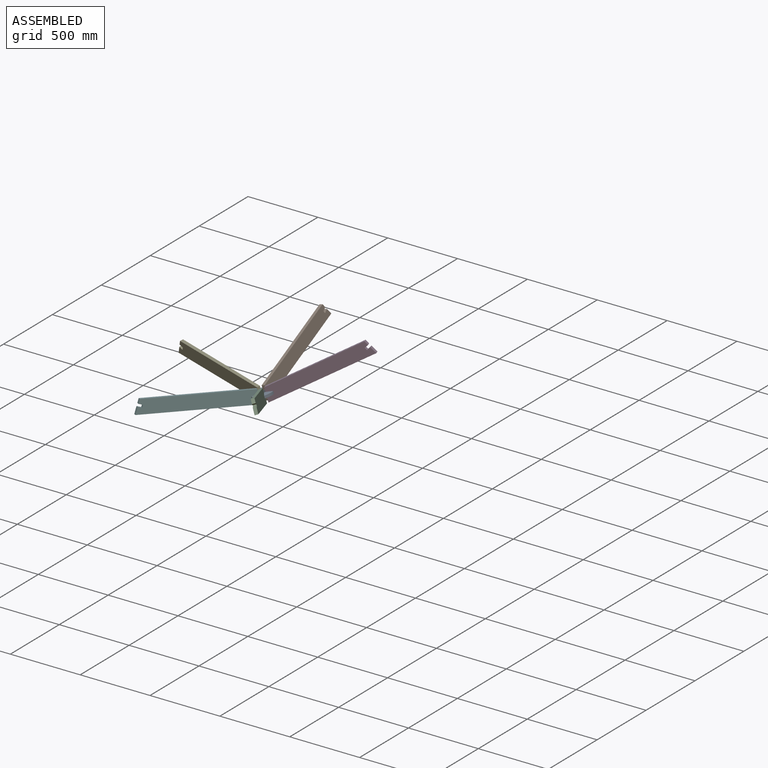
[diagram: assembled view]
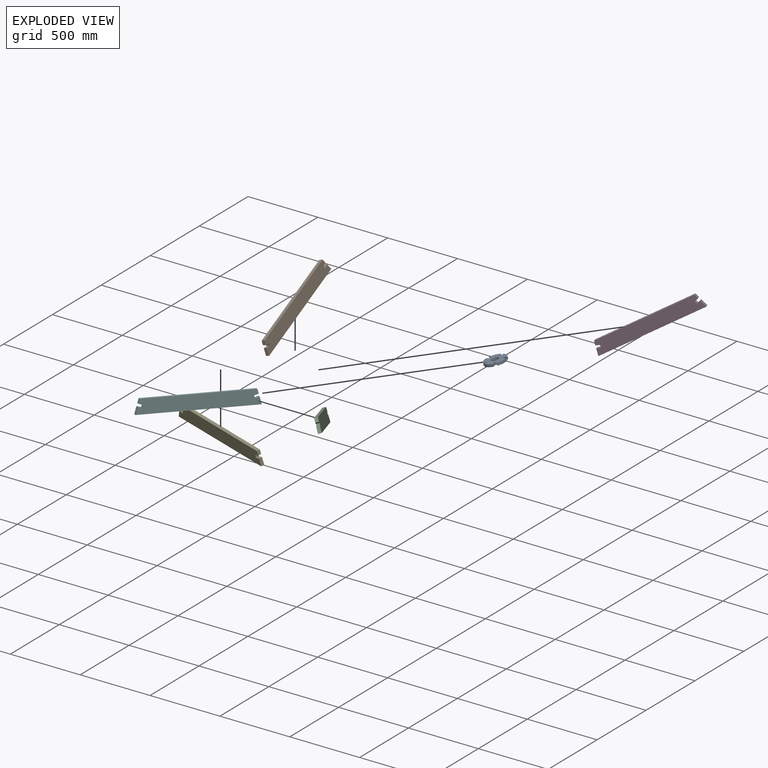
[diagram: exploded view]
GUIDED TOUR — MATED ASSEMBLY (Onshape document 0f69576821f2b884423cecf3, AutoMate assembly 0f69576821f2b884423cecf3_7e9c7edb3b1099160e2b73f4_de82159acf13c42b753e79b9_default)

This assembly has 6 components, labeled P0..P5 below (a component is one placed occurrence of a part; the same part can appear more than once), held together by 5 mates. A mate is a constraint between two components; its type names the relative motion it leaves free:
  FASTENED — locks the two components together rigidly (no relative motion).
Axis/direction vectors are unit vectors and 'through' points are millimeter coordinates, both in the assembly's world frame.

MATES
  1. FASTENED "Fastened 1": P3 <-> P0, direction (0.915, 0.297, 0.274) through (-190.22, -61.81, -5.05) mm
  2. FASTENED "Fastened 4": P5 <-> P0, direction (-0.558, -0.799, -0.222) through (-271.24, -122.12, -32.31) mm
  3. FASTENED "Fastened 3": P4 <-> P0, direction (-0.922, 0.319, -0.222) through (-291.22, -60.63, -32.31) mm
  4. FASTENED "Fastened 5": P2 <-> P0, direction (0.577, -0.813, 0.085) through (-208.82, -122.85, -15.46) mm
  5. FASTENED "Fastened 2": P0 <-> P1, direction (-0.011, 0.996, 0.085) through (-241.15, -23.35, -15.46) mm

ASSEMBLY ORDER
  1. P5 — the base component [order verified]
  2. P0 [order verified]
  3. P1 [order verified]
  4. P2 [order verified]
  5. P3 [order verified]
  6. P4 [order verified]
Order-tag legend:
  [order verified] — this step's position reverses a verified removal order: the component was checked to insert without passing through the ones already placed.

Of the 6 components, 6 carry the full construction recipe — the FeatureScript program that regenerates the part's solid from scratch; the rest are supplied as boundary geometry only.
Each toured component is shown spotlighted twice — in the assembled view, then in the exploded view, where a leader line traces a displaced component back to its assembled socket (saturated green if recipe-attached, orange if geometry-only; every other component desaturated gray) — followed by its recipe or geometry summary and the mates that hold it.
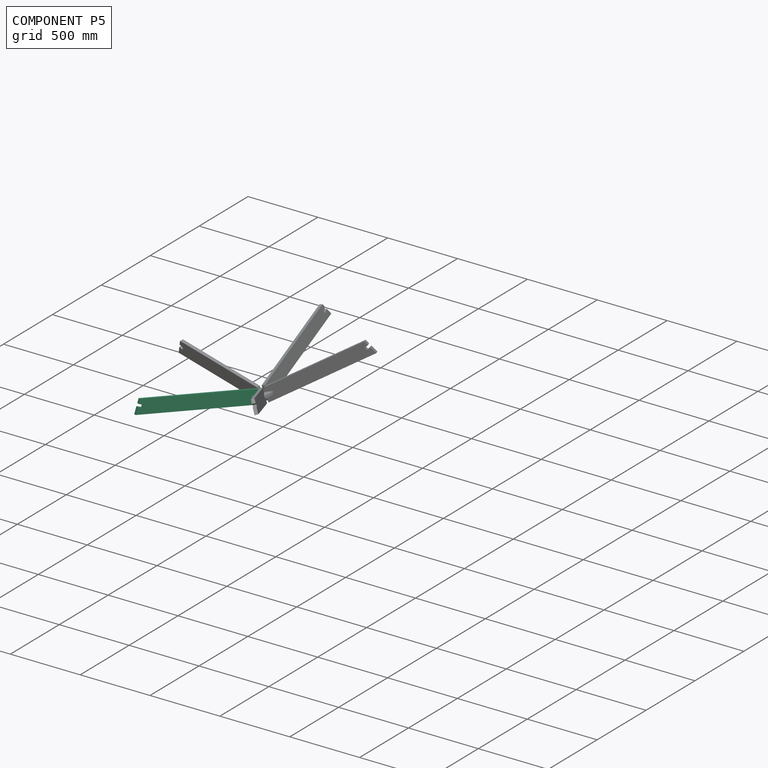
[diagram: component P5 — assembled]
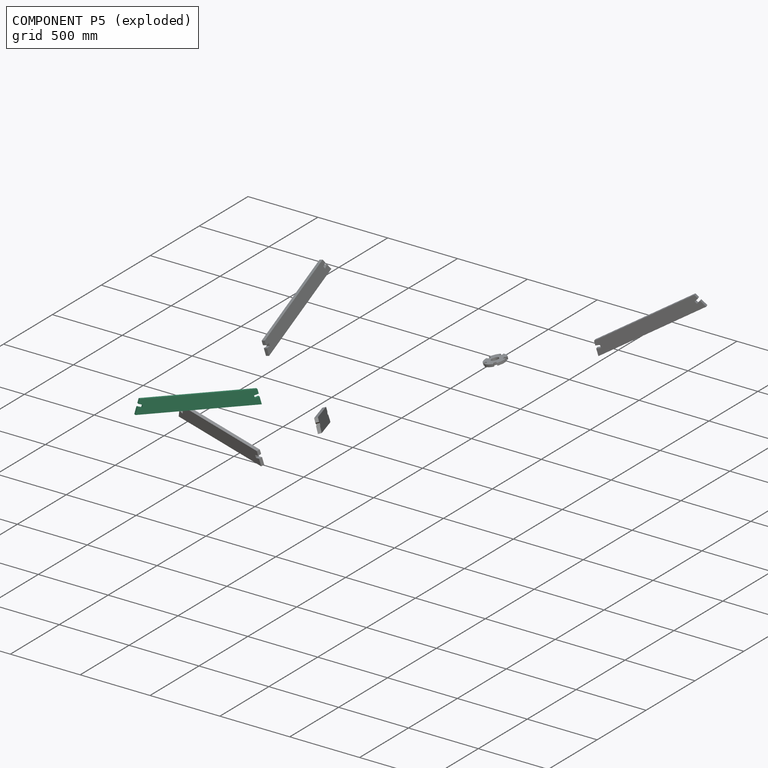
[diagram: component P5 — exploded]
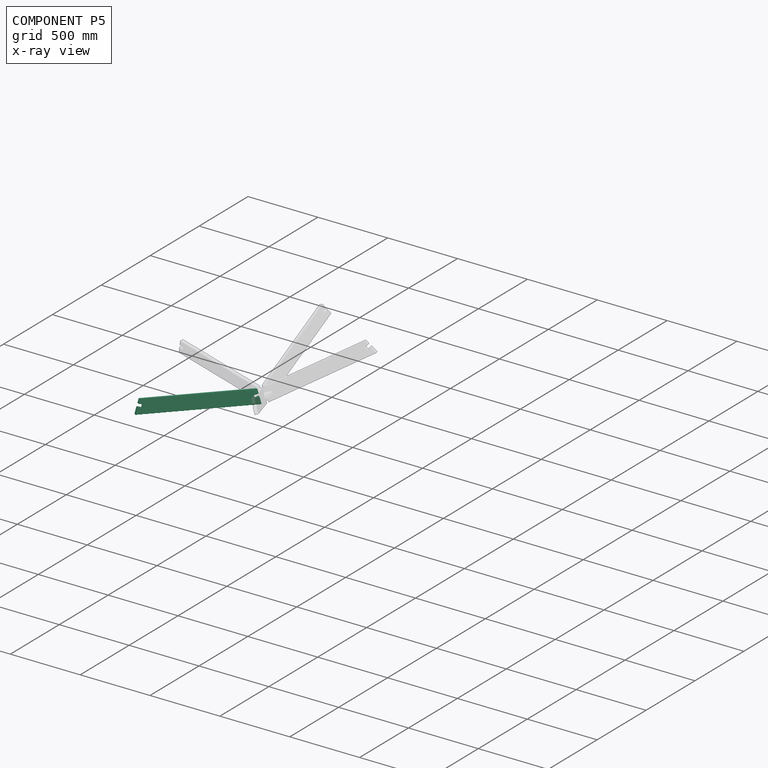
[diagram: component P5 — x-ray view]
COMPONENT P5 — same part as P1 (CADFS 00138779); its construction recipe is shown at P1.
Held by: FASTENED mate "Fastened 4" to P0.
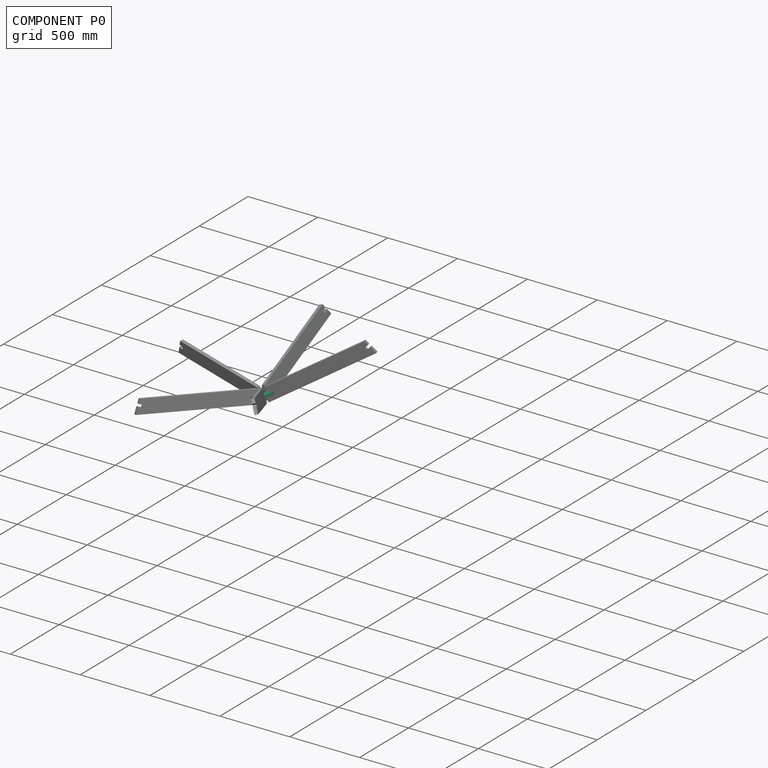
[diagram: component P0 — assembled]
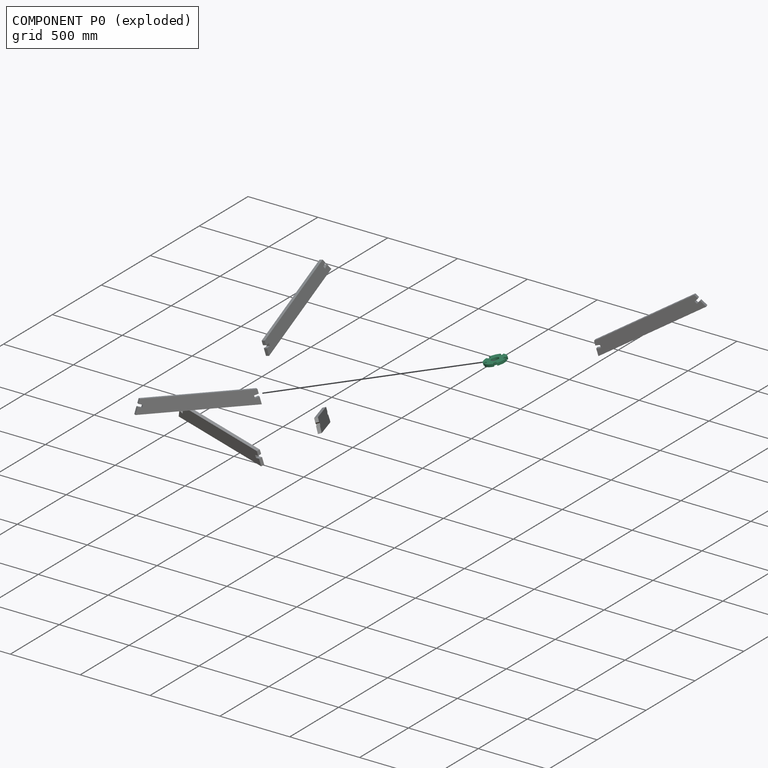
[diagram: component P0 — exploded]
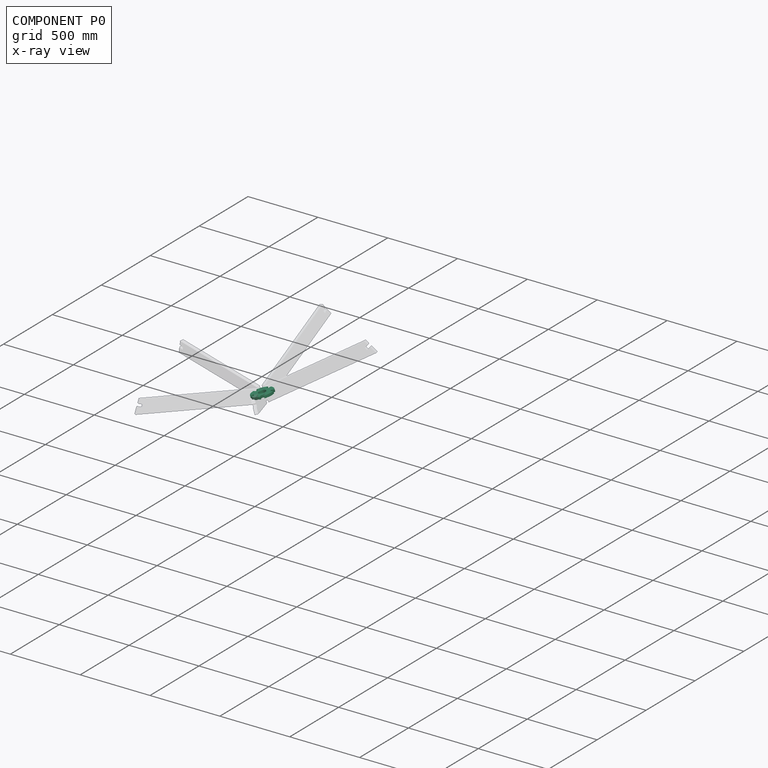
[diagram: component P0 — x-ray view]
COMPONENT P0 — recipe-attached (CADFS 00138780, mesh-verified: the recipe's output STEP matches this component's geometry to below the mesh-comparison resolution (tessellation chordal tolerance ~0.318 mm)).
Held by: FASTENED mate "Fastened 1" to P3; FASTENED mate "Fastened 4" to P5; FASTENED mate "Fastened 3" to P4; FASTENED mate "Fastened 5" to P2; FASTENED mate "Fastened 2" to P1.
Construction recipe (FeatureScript — the CAD program that rebuilds this solid; sketch coordinates are in the units given by the * unit suffixes, e.g. mm):

FeatureScript 1511;
import(path : "onshape/std/geometry.fs", version : "1511.0");
import(path : "onshape/std/common.fs", version : "1511.0");
const mm = millimeter;
const VERTEX = EntityType.VERTEX;
const EDGE = EntityType.EDGE;
const FACE = EntityType.FACE;
const BODY = EntityType.BODY;
function v(x, y){return vector(x, y);}
function OD(order){return orderDisambiguation(order);}
function OSD(set){return originalSetDisambiguation(set);}
function TD(topology){return topologyDisambiguation(topology);}
function TDD(query){return trueDependencyDisambiguation(query);}
function sQuery(a, b, c) {return sketchEntityQuery(a, b, c);}

annotation { "Feature Type Name" : "Feature", "Feature Type Description" : "" }
export const myFeature = defineFeature(function(context is Context, id is Id, definition is map)
    precondition{}
    {
        {
            var Q0;
            Q0=qCreatedBy(makeId("Top.planeOp"),FACE);
            var sketch = newSketch(context, id + "F0", { "sketchPlane" : qUnion([Q0])});
            skCircle(sketch, "E0.cCircle", {"center": v(0, 0) * mm, "radius": 25 * mm, "construction": true});
            skLineSegment(sketch, "E0.0", {"start": v(-18.16, 25) * mm, "end": v(18.16, 25) * mm, "construction": true});
            skLineSegment(sketch, "E0.1", {"start": v(18.16, 25) * mm, "end": v(29.39, -9.55) * mm, "construction": true});
            skLineSegment(sketch, "E0.2", {"start": v(29.39, -9.55) * mm, "end": v(0, -30.9) * mm, "construction": true});
            skLineSegment(sketch, "E0.3", {"start": v(0, -30.9) * mm, "end": v(-29.39, -9.55) * mm, "construction": true});
            skLineSegment(sketch, "E0.4", {"start": v(-29.39, -9.55) * mm, "end": v(-18.16, 25) * mm, "construction": true});
            skPoint(sketch, "E0.0.midPoint", {"position": v(0, 25) * mm});
            skCircle(sketch, "E1.cCircle", {"center": v(0, 0) * mm, "radius": 55 * mm, "construction": true});
            skLineSegment(sketch, "E1.0", {"start": v(-39.96, 55) * mm, "end": v(39.96, 55) * mm, "construction": true});
            skLineSegment(sketch, "E1.1", {"start": v(39.96, 55) * mm, "end": v(64.66, -21) * mm, "construction": true});
            skLineSegment(sketch, "E1.2", {"start": v(64.66, -21) * mm, "end": v(0, -67.98) * mm, "construction": true});
            skLineSegment(sketch, "E1.3", {"start": v(0, -67.98) * mm, "end": v(-64.66, -21) * mm, "construction": true});
            skLineSegment(sketch, "E1.4", {"start": v(-64.66, -21) * mm, "end": v(-39.96, 55) * mm, "construction": true});
            skPoint(sketch, "E1.0.midPoint", {"position": v(0, 55) * mm});
            skArc(sketch, "E2", {"start": v(-9.5, 74.4) * mm, "mid": v(-44.08, 60.68) * mm, "end": v(-67.82, 32.02) * mm});
            skLineSegment(sketch, "E3.bottom", {"start": v(-9.5, 55) * mm, "end": v(9.5, 55) * mm});
            skLineSegment(sketch, "E3.left", {"start": v(-9.5, 55) * mm, "end": v(-9.5, 74.4) * mm});
            skLineSegment(sketch, "E3.right", {"start": v(9.5, 55) * mm, "end": v(9.5, 74.4) * mm});
            skLineSegment(sketch, "E4.1.0", {"start": v(-49.37, 26.03) * mm, "end": v(-67.82, 32.02) * mm});
            skLineSegment(sketch, "E4.1.1", {"start": v(-55.24, 7.96) * mm, "end": v(-49.37, 26.03) * mm});
            skPoint(sketch, "E4.1.2", {"position": v(-52.3, 17) * mm});
            skLineSegment(sketch, "E4.1.3", {"start": v(-55.24, 7.96) * mm, "end": v(-73.7, 13.95) * mm});
            skLineSegment(sketch, "E4.2.0", {"start": v(-40.01, -38.91) * mm, "end": v(-51.41, -54.6) * mm});
            skLineSegment(sketch, "E4.2.1", {"start": v(-24.64, -50.08) * mm, "end": v(-40.01, -38.91) * mm});
            skPoint(sketch, "E4.2.2", {"position": v(-32.33, -44.5) * mm});
            skLineSegment(sketch, "E4.2.3", {"start": v(-24.64, -50.08) * mm, "end": v(-36.04, -65.77) * mm});
            skLineSegment(sketch, "E4.3.0", {"start": v(24.64, -50.08) * mm, "end": v(36.04, -65.77) * mm});
            skLineSegment(sketch, "E4.3.1", {"start": v(40.01, -38.91) * mm, "end": v(24.64, -50.08) * mm});
            skPoint(sketch, "E4.3.2", {"position": v(32.33, -44.5) * mm});
            skLineSegment(sketch, "E4.3.3", {"start": v(40.01, -38.91) * mm, "end": v(51.41, -54.6) * mm});
            skLineSegment(sketch, "E4.4.0", {"start": v(55.24, 7.96) * mm, "end": v(73.7, 13.95) * mm});
            skLineSegment(sketch, "E4.4.1", {"start": v(49.37, 26.03) * mm, "end": v(55.24, 7.96) * mm});
            skPoint(sketch, "E4.4.2", {"position": v(52.3, 17) * mm});
            skLineSegment(sketch, "E4.4.3", {"start": v(49.37, 26.03) * mm, "end": v(67.82, 32.02) * mm});
            skArc(sketch, "E5.trimOffspring", {"start": v(-73.7, 13.95) * mm, "mid": v(-71.33, -23.18) * mm, "end": v(-51.41, -54.6) * mm});
            skArc(sketch, "E6.trimOffspring", {"start": v(67.82, 32.02) * mm, "mid": v(44.08, 60.68) * mm, "end": v(9.5, 74.4) * mm});
            skArc(sketch, "E7.trimOffspring", {"start": v(51.41, -54.6) * mm, "mid": v(71.33, -23.18) * mm, "end": v(73.7, 13.95) * mm});
            skArc(sketch, "E8.trimOffspring", {"start": v(-36.04, -65.77) * mm, "mid": v(0, -75) * mm, "end": v(36.04, -65.77) * mm});
            skCircle(sketch, "E9", {"center": v(-0.35, 0.26) * mm, "radius": 25.25 * mm});
            skSolve(sketch);
        }
        {
            var Q0;
            Q0 = qSketchRegion(id + "F0", true);
            extrude(context, id + "F1", {"entities" : qUnion([Q0]), "depth" : 18 * mm});
        }
    });
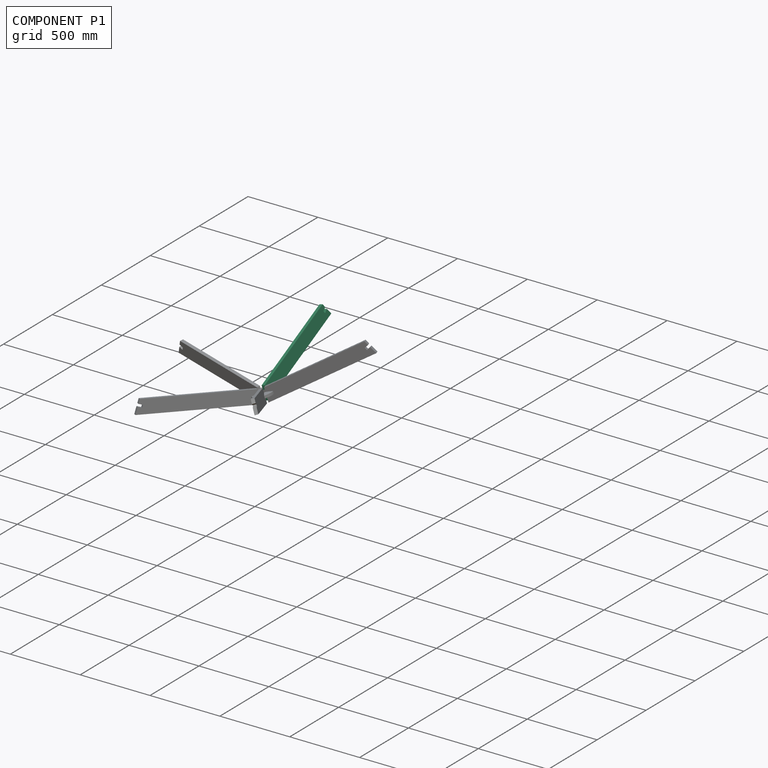
[diagram: component P1 — assembled]
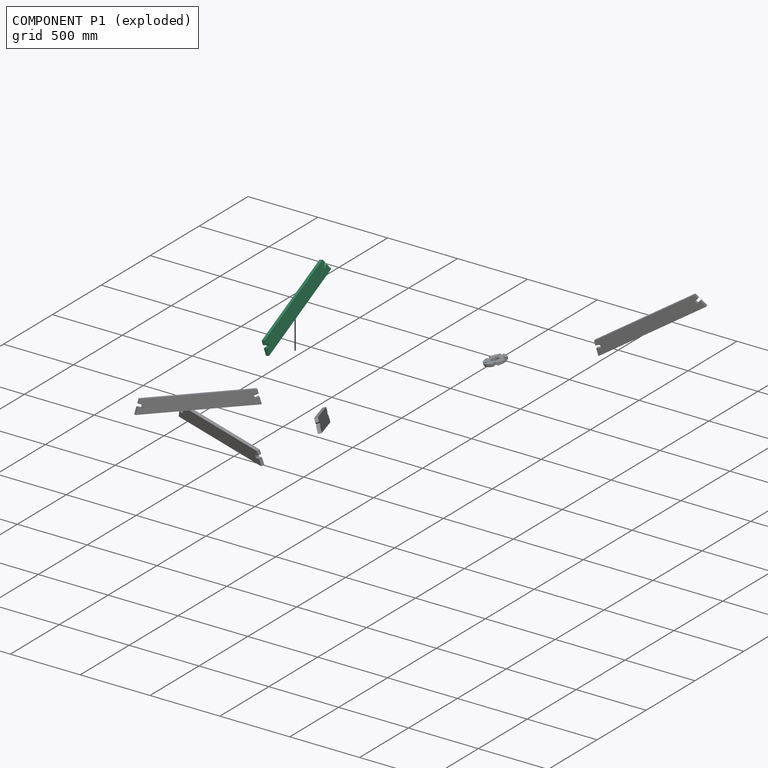
[diagram: component P1 — exploded]
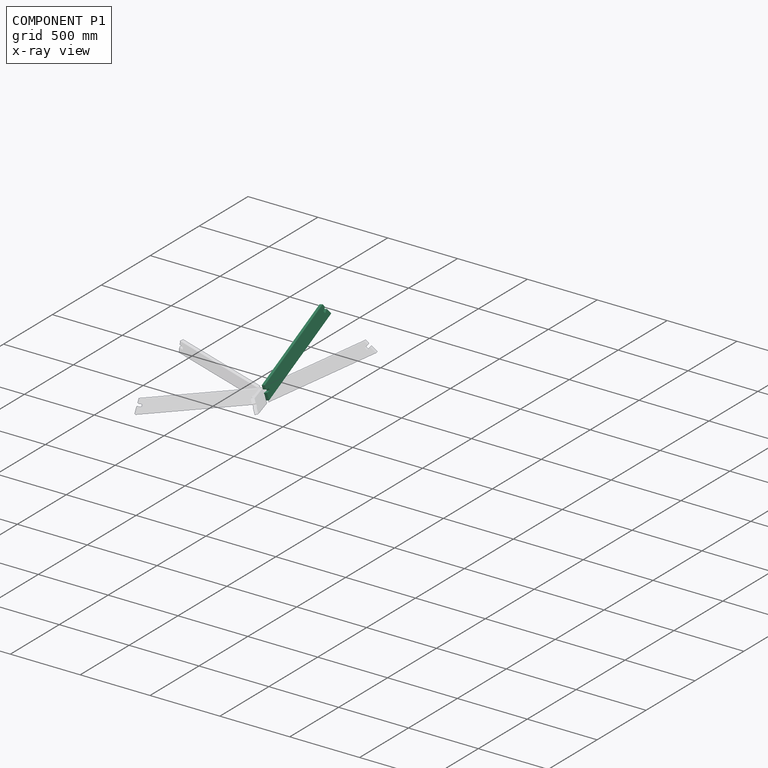
[diagram: component P1 — x-ray view]
COMPONENT P1 — recipe-attached (CADFS 00138779, mesh-verified: the recipe's output STEP matches this component's geometry to below the mesh-comparison resolution (tessellation chordal tolerance ~1.18 mm)).
Held by: FASTENED mate "Fastened 2" to P0.
Construction recipe (FeatureScript — the CAD program that rebuilds this solid; sketch coordinates are in the units given by the * unit suffixes, e.g. mm):

FeatureScript 1511;
import(path : "onshape/std/geometry.fs", version : "1511.0");
import(path : "onshape/std/common.fs", version : "1511.0");
const mm = millimeter;
const VERTEX = EntityType.VERTEX;
const EDGE = EntityType.EDGE;
const FACE = EntityType.FACE;
const BODY = EntityType.BODY;
function v(x, y){return vector(x, y);}
function OD(order){return orderDisambiguation(order);}
function OSD(set){return originalSetDisambiguation(set);}
function TD(topology){return topologyDisambiguation(topology);}
function TDD(query){return trueDependencyDisambiguation(query);}
function sQuery(a, b, c) {return sketchEntityQuery(a, b, c);}

annotation { "Feature Type Name" : "Feature", "Feature Type Description" : "" }
export const myFeature = defineFeature(function(context is Context, id is Id, definition is map)
    precondition{}
    {
        {
            var Q0;
            Q0=qCreatedBy(makeId("Top.planeOp"),FACE);
            var sketch = newSketch(context, id + "F0", { "sketchPlane" : qUnion([Q0])});
            skLineSegment(sketch, "E0", {"start": v(-361.94, 0) * mm, "end": v(-370.16, 28.85) * mm});
            skLineSegment(sketch, "E1", {"start": v(-370.16, 28.85) * mm, "end": v(-341.3, 37.07) * mm});
            skLineSegment(sketch, "E2", {"start": v(-341.3, 37.07) * mm, "end": v(-346.51, 55.34) * mm});
            skLineSegment(sketch, "E3", {"start": v(-346.51, 55.34) * mm, "end": v(-375.36, 47.13) * mm});
            skLineSegment(sketch, "E4.trimOffspring", {"start": v(-375.36, 47.13) * mm, "end": v(-389, 95) * mm});
            skLineSegment(sketch, "E5.MirrorCS", {"start": v(361.94, 0) * mm, "end": v(370.16, 28.85) * mm});
            skLineSegment(sketch, "E6.MirrorCS", {"start": v(370.16, 28.85) * mm, "end": v(341.3, 37.07) * mm});
            skLineSegment(sketch, "E7.MirrorCS", {"start": v(341.3, 37.07) * mm, "end": v(346.51, 55.34) * mm});
            skLineSegment(sketch, "E8.MirrorCS", {"start": v(346.51, 55.34) * mm, "end": v(375.36, 47.13) * mm});
            skLineSegment(sketch, "E9.MirrorCS", {"start": v(375.36, 47.13) * mm, "end": v(389, 95) * mm});
            skLineSegment(sketch, "E10", {"start": v(-389, 95) * mm, "end": v(389, 95) * mm});
            skLineSegment(sketch, "E11", {"start": v(-361.94, 0) * mm, "end": v(361.94, 0) * mm});
            skSolve(sketch);
        }
        {
            var Q0;
            Q0 = qSketchRegion(id + "F0", true);
            extrude(context, id + "F1", {"entities" : qUnion([Q0]), "endBound" : BoundingType.SYMMETRIC, "depth" : 23 * mm});
        }
    });
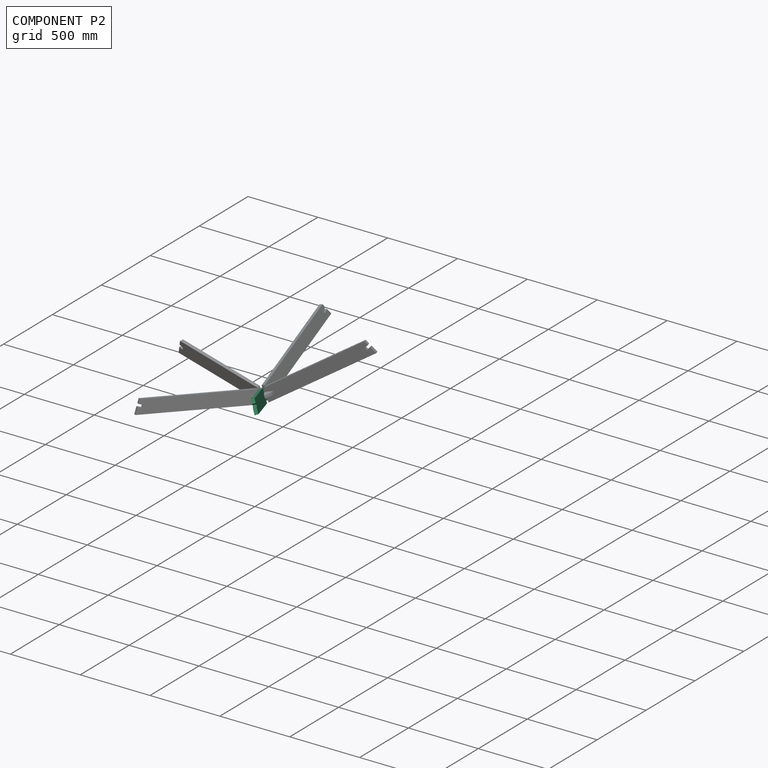
[diagram: component P2 — assembled]
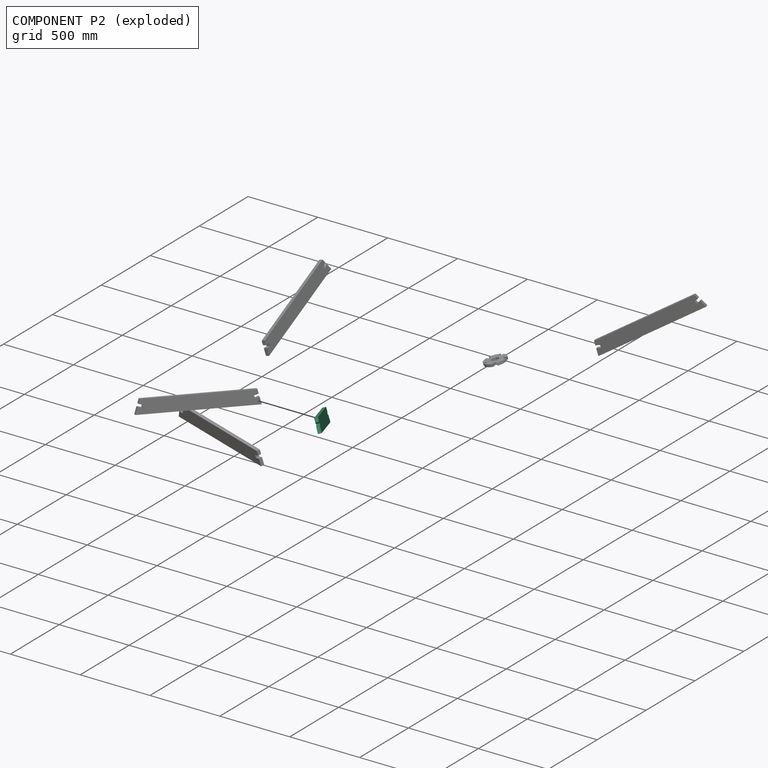
[diagram: component P2 — exploded]
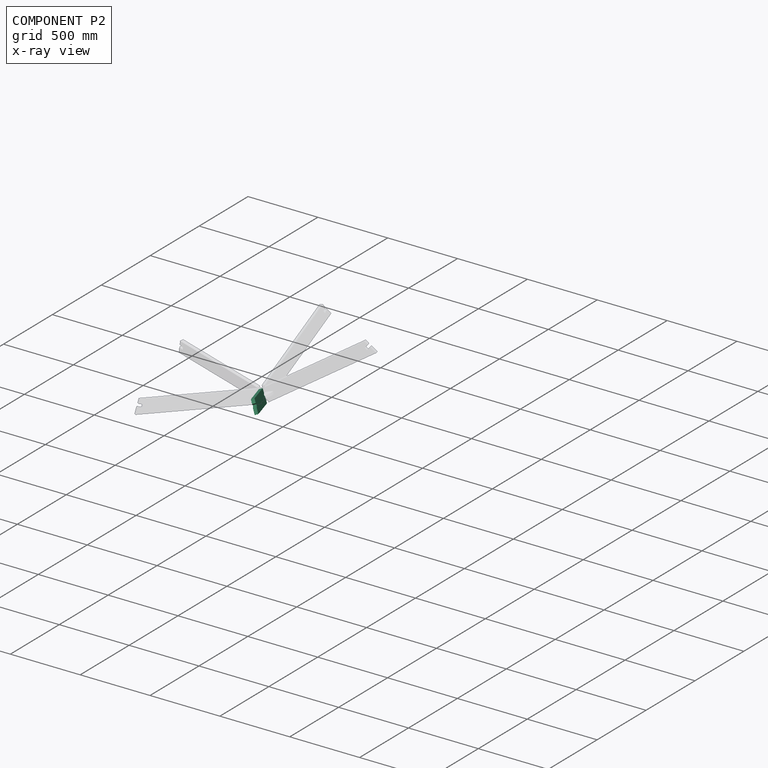
[diagram: component P2 — x-ray view]
COMPONENT P2 — same part as P1 (CADFS 00138779); its construction recipe is shown at P1.
Held by: FASTENED mate "Fastened 5" to P0.
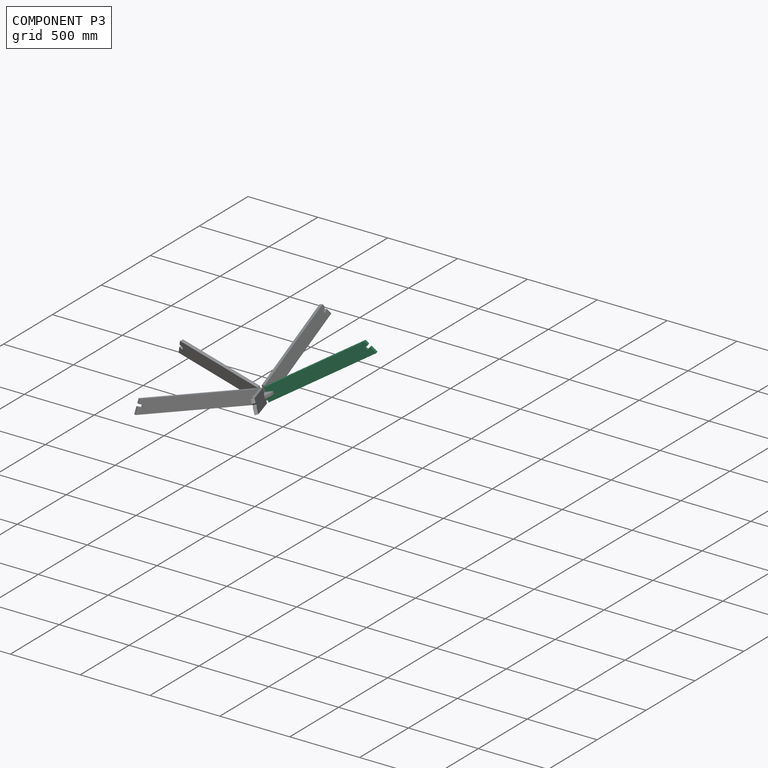
[diagram: component P3 — assembled]
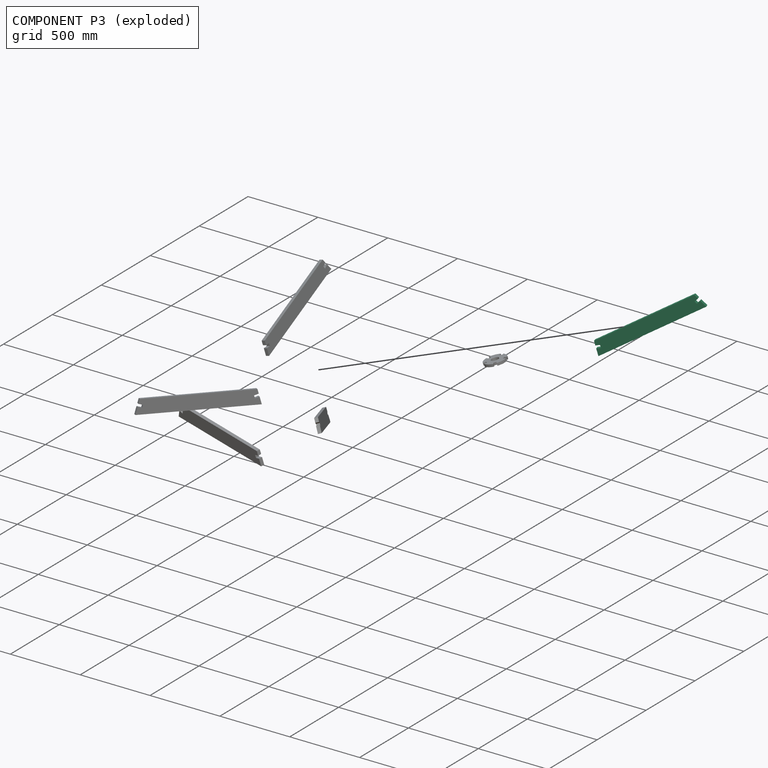
[diagram: component P3 — exploded]
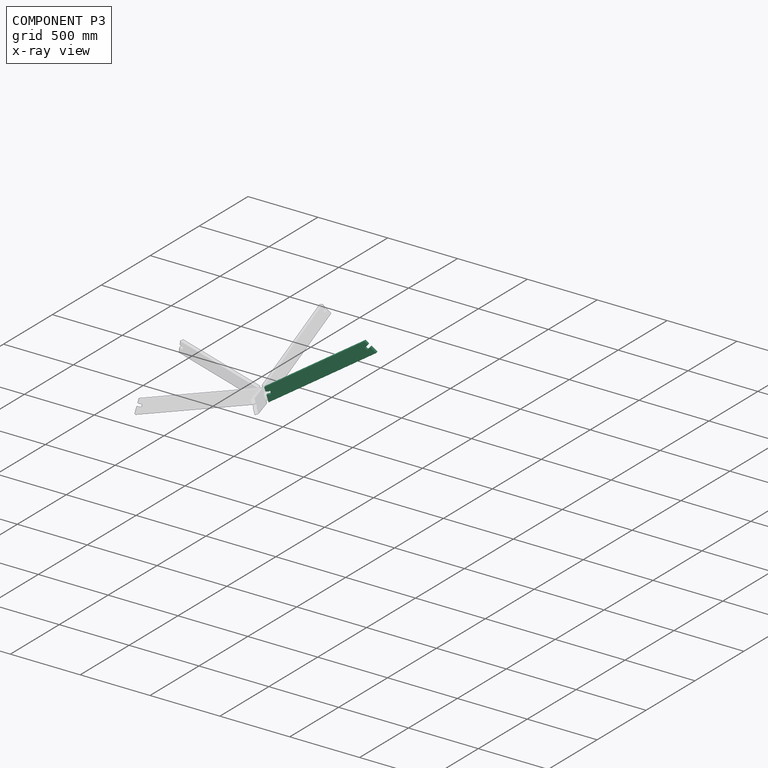
[diagram: component P3 — x-ray view]
COMPONENT P3 — same part as P1 (CADFS 00138779); its construction recipe is shown at P1.
Held by: FASTENED mate "Fastened 1" to P0.
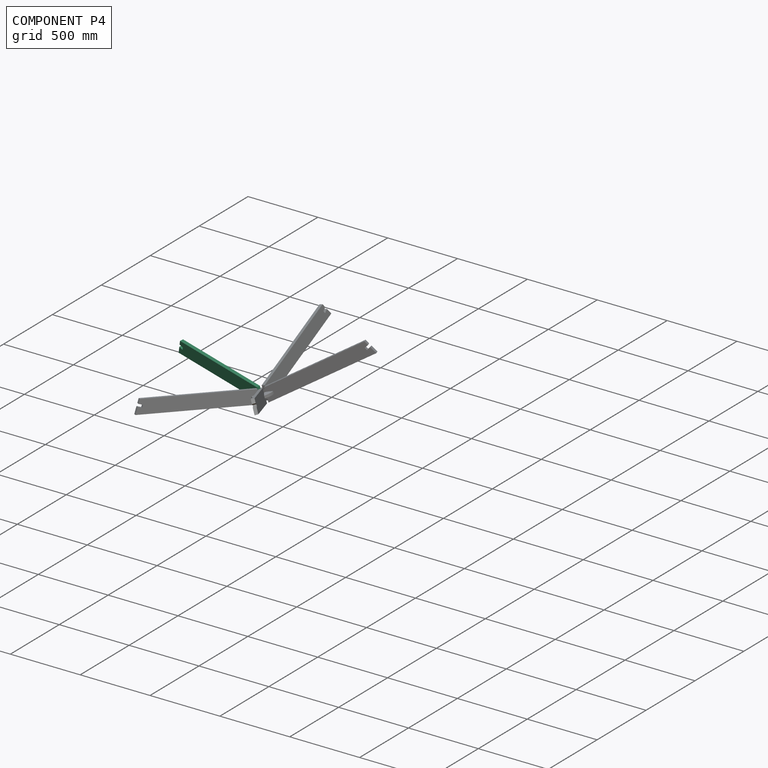
[diagram: component P4 — assembled]
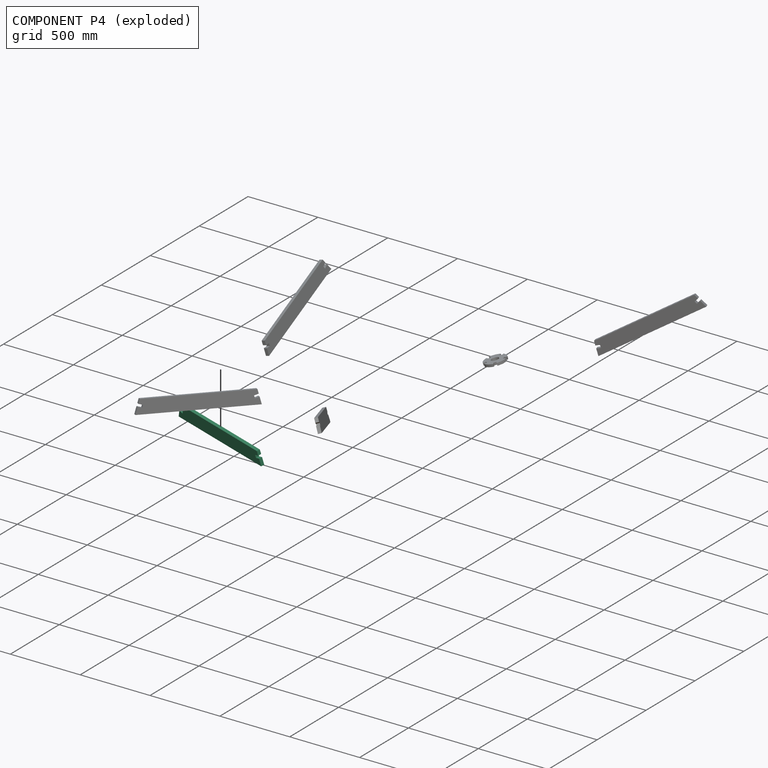
[diagram: component P4 — exploded]
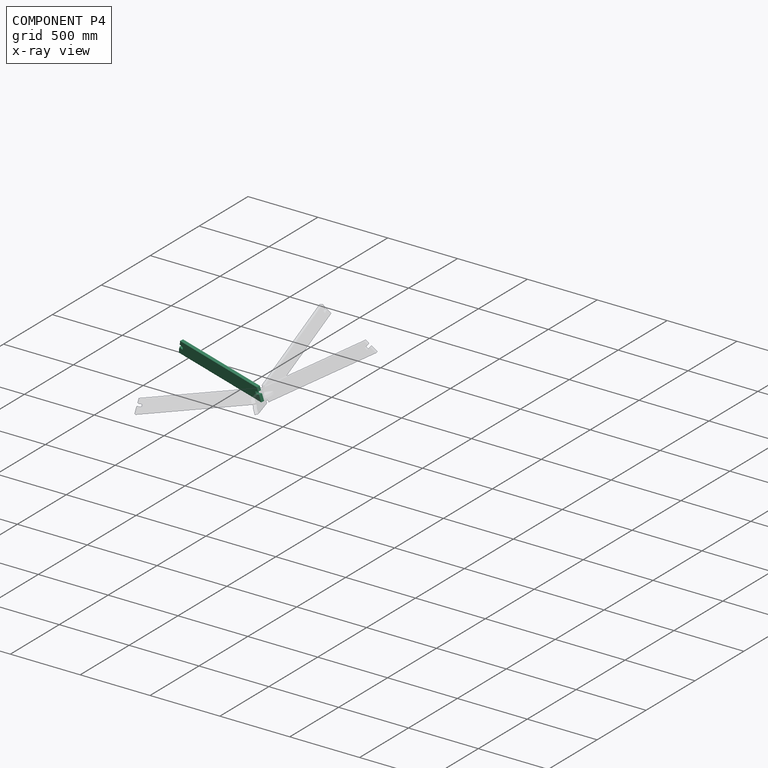
[diagram: component P4 — x-ray view]
COMPONENT P4 — same part as P1 (CADFS 00138779); its construction recipe is shown at P1.
Held by: FASTENED mate "Fastened 3" to P0.
PROVENANCE & LICENSES
Assembly (occurrences, transforms, mates, per-part STEP geometry): AutoMate dataset, Zenodo record 7776208, CC0.
Construction recipes: CADFS (HuggingFace VladPyatov/CADFS, CC-BY-4.0, layered over the ABC dataset), FeatureScript reconstruction programs keyed by ABC model id.
Join: ABC meta listings map ABC model id -> Onshape documentId; within a shared document, parts are matched by geometric signature (bounding-box dims + volume at 0.1% relative tolerance, exact B-rep face/solid counts).
Verification: 6 of this assembly's 6 components carry a recipe attachment, and every attachment is mesh-verified: the CADFS STEP and the AutoMate member STEP were compared as meshes in their shared local frame (symmetric sampled-point-to-mesh distance); worst across the 6 attachments: below the mesh-comparison resolution (tessellation chordal tolerance ~1.18 mm) on a 784 mm part.
Renders: orthographic iso camera (az 35 / el 25); the floor grid conveys scale (grid pitch printed in each image; no ruler). In the exploded view each component is displaced by its stored offset vector: the offsets alone carry the explosion direction (mate normal/axis signs are not orientation cues and do not encode it), and separation distances are assigned per mate-chain, not proportionally to assembly-order depth.
